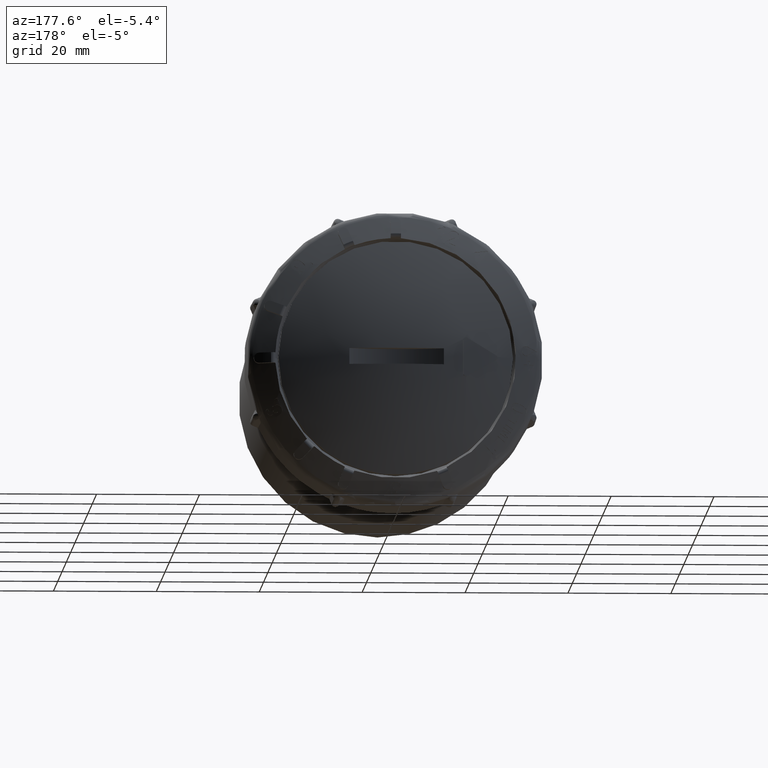
[diagram: clean part render]
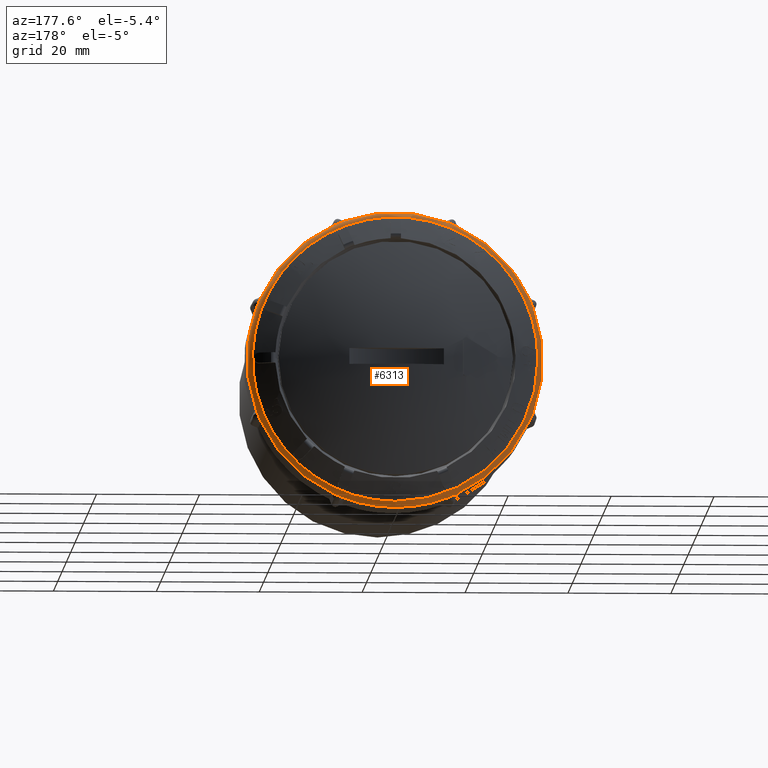
[diagram: same view with one face highlighted and labeled with its STEP entity id]
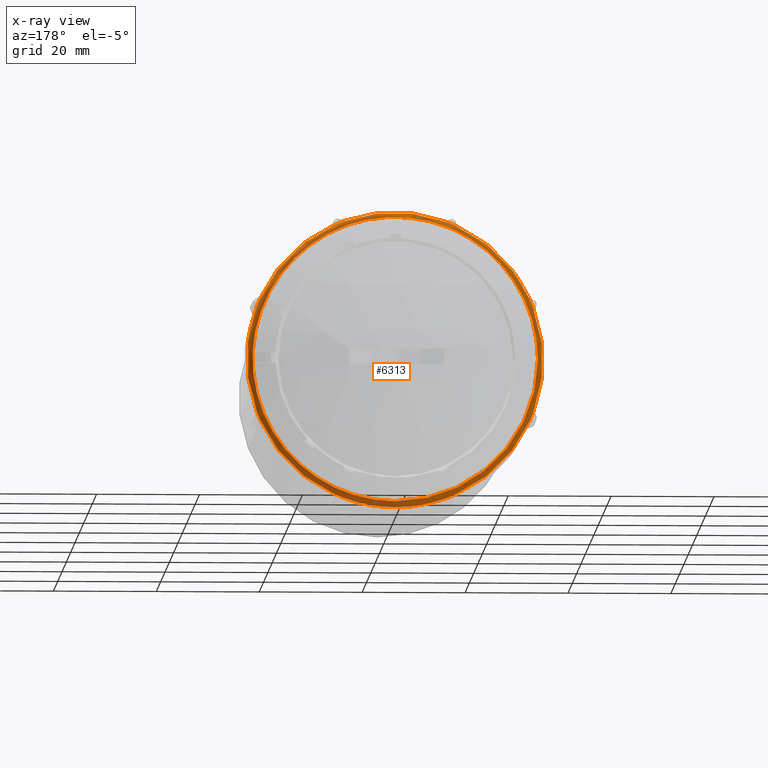
[diagram: x-ray of the same camera — body ghosted, the highlighted face saturated]
A machine part, auxiliary view. The second image highlights one B-rep face of the part: STEP entity #6313.
The next image is the same camera in x-ray: the body ghosted, the highlighted face saturated — about 0% of this face is hidden behind the body in this view.
In plain terms, the highlighted toroidal blend (fillet) surface has major radius 26.7601 mm and minor (blend) radius 2 mm.
Its self-contained STEP definition (entity closure, byte-faithful):
#189=TOROIDAL_SURFACE('',#6753,26.7601105933538,2.);
#1176=B_SPLINE_CURVE_WITH_KNOTS('',3,(#9256,#9257,#9258,#9259),
 .UNSPECIFIED.,.F.,.F.,(4,4),(0.,0.0148336896084148),.UNSPECIFIED.);
#1179=B_SPLINE_CURVE_WITH_KNOTS('',3,(#9289,#9290,#9291,#9292),
 .UNSPECIFIED.,.F.,.F.,(4,4),(3.32630750581756E-9,0.0148337531180695),
 .UNSPECIFIED.);
#1180=B_SPLINE_CURVE_WITH_KNOTS('',3,(#9302,#9303,#9304,#9305,#9306,#9307,
#9308,#9309,#9310,#9311,#9312,#9313),.UNSPECIFIED.,.F.,.F.,(4,2,2,2,2,4),
(0.,0.0320370428658661,0.0611745080788965,0.0891347805985909,0.108909685014162,
0.128834282042833),.UNSPECIFIED.);
#1182=B_SPLINE_CURVE_WITH_KNOTS('',3,(#9351,#9352,#9353,#9354),
 .UNSPECIFIED.,.F.,.F.,(4,4),(0.,0.0148336896083818),.UNSPECIFIED.);
#1185=B_SPLINE_CURVE_WITH_KNOTS('',3,(#9384,#9385,#9386,#9387),
 .UNSPECIFIED.,.F.,.F.,(4,4),(3.32630734475786E-9,0.0148337531179887),
 .UNSPECIFIED.);
#1186=B_SPLINE_CURVE_WITH_KNOTS('',3,(#9397,#9398,#9399,#9400,#9401,#9402,
#9403,#9404,#9405,#9406,#9407,#9408),.UNSPECIFIED.,.F.,.F.,(4,2,2,2,2,4),
(0.,0.0320370428658694,0.0611745080789084,0.0891347805986136,0.108909685014187,
0.128834282042854),.UNSPECIFIED.);
#1188=B_SPLINE_CURVE_WITH_KNOTS('',3,(#9446,#9447,#9448,#9449),
 .UNSPECIFIED.,.F.,.F.,(4,4),(0.,0.0148336896083872),.UNSPECIFIED.);
#1191=B_SPLINE_CURVE_WITH_KNOTS('',3,(#9479,#9480,#9481,#9482),
 .UNSPECIFIED.,.F.,.F.,(4,4),(3.32630671073734E-9,0.0148337531181456),
 .UNSPECIFIED.);
#1192=B_SPLINE_CURVE_WITH_KNOTS('',3,(#9492,#9493,#9494,#9495,#9496,#9497,
#9498,#9499,#9500,#9501,#9502,#9503),.UNSPECIFIED.,.F.,.F.,(4,2,2,2,2,4),
(0.,0.032037042865868,0.0611745080789088,0.0891347805986176,0.108909685014197,
0.128834282042868),.UNSPECIFIED.);
#1194=B_SPLINE_CURVE_WITH_KNOTS('',3,(#9541,#9542,#9543,#9544),
 .UNSPECIFIED.,.F.,.F.,(4,4),(0.,0.0148336896083754),.UNSPECIFIED.);
#1197=B_SPLINE_CURVE_WITH_KNOTS('',3,(#9574,#9575,#9576,#9577),
 .UNSPECIFIED.,.F.,.F.,(4,4),(3.32630661955745E-9,0.0148337531180443),
 .UNSPECIFIED.);
#1198=B_SPLINE_CURVE_WITH_KNOTS('',3,(#9587,#9588,#9589,#9590,#9591,#9592,
#9593,#9594,#9595,#9596,#9597,#9598),.UNSPECIFIED.,.F.,.F.,(4,2,2,2,2,4),
(0.,0.0320370428658693,0.061174508078909,0.0891347805986124,0.108909685014185,
0.128834282042856),.UNSPECIFIED.);
#1200=B_SPLINE_CURVE_WITH_KNOTS('',3,(#9636,#9637,#9638,#9639),
 .UNSPECIFIED.,.F.,.F.,(4,4),(0.,0.0148336896083804),.UNSPECIFIED.);
#1203=B_SPLINE_CURVE_WITH_KNOTS('',3,(#9669,#9670,#9671,#9672),
 .UNSPECIFIED.,.F.,.F.,(4,4),(3.32630674917658E-9,0.0148337531182227),
 .UNSPECIFIED.);
#1204=B_SPLINE_CURVE_WITH_KNOTS('',3,(#9682,#9683,#9684,#9685,#9686,#9687,
#9688,#9689,#9690,#9691,#9692,#9693),.UNSPECIFIED.,.F.,.F.,(4,2,2,2,2,4),
(0.,0.0320370428658679,0.0611745080789059,0.0891347805986127,0.108909685014194,
0.128834282042867),.UNSPECIFIED.);
#1206=B_SPLINE_CURVE_WITH_KNOTS('',3,(#9731,#9732,#9733,#9734),
 .UNSPECIFIED.,.F.,.F.,(4,4),(0.,0.0148336896084047),.UNSPECIFIED.);
#1209=B_SPLINE_CURVE_WITH_KNOTS('',3,(#9764,#9765,#9766,#9767),
 .UNSPECIFIED.,.F.,.F.,(4,4),(3.32630662356984E-9,0.0148337531180015),
 .UNSPECIFIED.);
#1210=B_SPLINE_CURVE_WITH_KNOTS('',3,(#9777,#9778,#9779,#9780,#9781,#9782,
#9783,#9784,#9785,#9786,#9787,#9788),.UNSPECIFIED.,.F.,.F.,(4,2,2,2,2,4),
(0.,0.0320370428658676,0.0611745080789006,0.0891347805986003,0.108909685014174,
0.128834282042842),.UNSPECIFIED.);
#1212=B_SPLINE_CURVE_WITH_KNOTS('',3,(#9826,#9827,#9828,#9829),
 .UNSPECIFIED.,.F.,.F.,(4,4),(0.,0.0148336896083799),.UNSPECIFIED.);
#1215=B_SPLINE_CURVE_WITH_KNOTS('',3,(#9859,#9860,#9861,#9862),
 .UNSPECIFIED.,.F.,.F.,(4,4),(3.32630684854577E-9,0.0148337531181848),
 .UNSPECIFIED.);
#1216=B_SPLINE_CURVE_WITH_KNOTS('',3,(#9872,#9873,#9874,#9875,#9876,#9877,
#9878,#9879,#9880,#9881,#9882,#9883),.UNSPECIFIED.,.F.,.F.,(4,2,2,2,2,4),
(0.,0.0320370428658662,0.0611745080789064,0.0891347805986128,0.10890968501419,
0.128834282042863),.UNSPECIFIED.);
#1222=B_SPLINE_CURVE_WITH_KNOTS('',3,(#10002,#10003,#10004,#10005),
 .UNSPECIFIED.,.F.,.F.,(4,4),(0.,0.0148337497913587),.UNSPECIFIED.);
#1223=B_SPLINE_CURVE_WITH_KNOTS('',3,(#10007,#10008,#10009,#10010,#10011,
#10012,#10013,#10014,#10015,#10016,#10017,#10018),.UNSPECIFIED.,.F.,.F.,
(4,2,2,2,2,4),(0.,0.0320370428658675,0.0611745080789003,0.0891347805985978,
0.108909685014166,0.128834282042829),.UNSPECIFIED.);
#1224=B_SPLINE_CURVE_WITH_KNOTS('',3,(#10019,#10020,#10021,#10022),
 .UNSPECIFIED.,.F.,.F.,(4,4),(0.,0.0148336896078785),.UNSPECIFIED.);
#1545=FACE_OUTER_BOUND('',#1903,.T.);
#1903=EDGE_LOOP('',(#4577,#4578,#4579,#4580,#4581,#4582,#4583,#4584,#4585,
#4586,#4587,#4588,#4589,#4590,#4591,#4592,#4593,#4594,#4595,#4596,#4597,
#4598,#4599,#4600,#4601,#4602,#4603,#4604,#4605,#4606,#4607,#4608,#4609,
#4610,#4611,#4612,#4613));
#2286=CIRCLE('',#6736,28.7600344394821);
#2287=CIRCLE('',#6738,28.7600344394821);
#2288=CIRCLE('',#6740,28.7600344394821);
#2289=CIRCLE('',#6742,28.7600344394821);
#2290=CIRCLE('',#6744,28.7600344394821);
#2291=CIRCLE('',#6746,28.7600344394821);
#2293=CIRCLE('',#6749,28.7600344394821);
#2294=CIRCLE('',#6750,28.7600344394821);
#2295=CIRCLE('',#6752,28.7600344394821);
#2296=CIRCLE('',#6754,27.7332055240212);
#2297=CIRCLE('',#6755,2.);
#2298=CIRCLE('',#6756,27.7332055240212);
#2657=VERTEX_POINT('',#9243);
#2659=VERTEX_POINT('',#9255);
#2661=VERTEX_POINT('',#9272);
#2664=VERTEX_POINT('',#9287);
#2667=VERTEX_POINT('',#9338);
#2669=VERTEX_POINT('',#9350);
#2671=VERTEX_POINT('',#9367);
#2674=VERTEX_POINT('',#9382);
#2677=VERTEX_POINT('',#9433);
#2679=VERTEX_POINT('',#9445);
#2681=VERTEX_POINT('',#9462);
#2684=VERTEX_POINT('',#9477);
#2687=VERTEX_POINT('',#9528);
#2689=VERTEX_POINT('',#9540);
#2691=VERTEX_POINT('',#9557);
#2694=VERTEX_POINT('',#9572);
#2697=VERTEX_POINT('',#9623);
#2699=VERTEX_POINT('',#9635);
#2701=VERTEX_POINT('',#9652);
#2704=VERTEX_POINT('',#9667);
#2707=VERTEX_POINT('',#9718);
#2709=VERTEX_POINT('',#9730);
#2711=VERTEX_POINT('',#9747);
#2714=VERTEX_POINT('',#9762);
#2717=VERTEX_POINT('',#9813);
#2719=VERTEX_POINT('',#9825);
#2721=VERTEX_POINT('',#9842);
#2724=VERTEX_POINT('',#9857);
#2732=VERTEX_POINT('',#9946);
#2737=VERTEX_POINT('',#9980);
#2738=VERTEX_POINT('',#9991);
#2739=VERTEX_POINT('',#9997);
#2740=VERTEX_POINT('',#9998);
#2741=VERTEX_POINT('',#10001);
#2742=VERTEX_POINT('',#10006);
#3300=EDGE_CURVE('',#2659,#2657,#1176,.T.);
#3307=EDGE_CURVE('',#2661,#2664,#1179,.T.);
#3308=EDGE_CURVE('',#2664,#2659,#1180,.T.);
#3317=EDGE_CURVE('',#2669,#2667,#1182,.T.);
#3324=EDGE_CURVE('',#2671,#2674,#1185,.T.);
#3325=EDGE_CURVE('',#2674,#2669,#1186,.T.);
#3334=EDGE_CURVE('',#2679,#2677,#1188,.T.);
#3341=EDGE_CURVE('',#2681,#2684,#1191,.T.);
#3342=EDGE_CURVE('',#2684,#2679,#1192,.T.);
#3351=EDGE_CURVE('',#2689,#2687,#1194,.T.);
#3358=EDGE_CURVE('',#2691,#2694,#1197,.T.);
#3359=EDGE_CURVE('',#2694,#2689,#1198,.T.);
#3368=EDGE_CURVE('',#2699,#2697,#1200,.T.);
#3375=EDGE_CURVE('',#2701,#2704,#1203,.T.);
#3376=EDGE_CURVE('',#2704,#2699,#1204,.T.);
#3385=EDGE_CURVE('',#2709,#2707,#1206,.T.);
#3392=EDGE_CURVE('',#2711,#2714,#1209,.T.);
#3393=EDGE_CURVE('',#2714,#2709,#1210,.T.);
#3402=EDGE_CURVE('',#2719,#2717,#1212,.T.);
#3409=EDGE_CURVE('',#2721,#2724,#1215,.T.);
#3410=EDGE_CURVE('',#2724,#2719,#1216,.T.);
#3429=EDGE_CURVE('',#2732,#2721,#2286,.T.);
#3433=EDGE_CURVE('',#2717,#2711,#2287,.T.);
#3434=EDGE_CURVE('',#2707,#2701,#2288,.T.);
#3435=EDGE_CURVE('',#2697,#2691,#2289,.T.);
#3436=EDGE_CURVE('',#2687,#2681,#2290,.T.);
#3437=EDGE_CURVE('',#2677,#2671,#2291,.T.);
#3441=EDGE_CURVE('',#2738,#2737,#2293,.T.);
#3442=EDGE_CURVE('',#2657,#2738,#2294,.T.);
#3443=EDGE_CURVE('',#2667,#2661,#2295,.T.);
#3444=EDGE_CURVE('',#2739,#2740,#2296,.T.);
#3445=EDGE_CURVE('',#2740,#2738,#2297,.T.);
#3446=EDGE_CURVE('',#2737,#2741,#1222,.T.);
#3447=EDGE_CURVE('',#2741,#2742,#1223,.T.);
#3448=EDGE_CURVE('',#2742,#2732,#1224,.T.);
#3449=EDGE_CURVE('',#2740,#2739,#2298,.T.);
#4577=ORIENTED_EDGE('',*,*,#3444,.T.);
#4578=ORIENTED_EDGE('',*,*,#3445,.T.);
#4579=ORIENTED_EDGE('',*,*,#3441,.T.);
#4580=ORIENTED_EDGE('',*,*,#3446,.T.);
#4581=ORIENTED_EDGE('',*,*,#3447,.T.);
#4582=ORIENTED_EDGE('',*,*,#3448,.T.);
#4583=ORIENTED_EDGE('',*,*,#3429,.T.);
#4584=ORIENTED_EDGE('',*,*,#3409,.T.);
#4585=ORIENTED_EDGE('',*,*,#3410,.T.);
#4586=ORIENTED_EDGE('',*,*,#3402,.T.);
#4587=ORIENTED_EDGE('',*,*,#3433,.T.);
#4588=ORIENTED_EDGE('',*,*,#3392,.T.);
#4589=ORIENTED_EDGE('',*,*,#3393,.T.);
#4590=ORIENTED_EDGE('',*,*,#3385,.T.);
#4591=ORIENTED_EDGE('',*,*,#3434,.T.);
#4592=ORIENTED_EDGE('',*,*,#3375,.T.);
#4593=ORIENTED_EDGE('',*,*,#3376,.T.);
#4594=ORIENTED_EDGE('',*,*,#3368,.T.);
#4595=ORIENTED_EDGE('',*,*,#3435,.T.);
#4596=ORIENTED_EDGE('',*,*,#3358,.T.);
#4597=ORIENTED_EDGE('',*,*,#3359,.T.);
#4598=ORIENTED_EDGE('',*,*,#3351,.T.);
#4599=ORIENTED_EDGE('',*,*,#3436,.T.);
#4600=ORIENTED_EDGE('',*,*,#3341,.T.);
#4601=ORIENTED_EDGE('',*,*,#3342,.T.);
#4602=ORIENTED_EDGE('',*,*,#3334,.T.);
#4603=ORIENTED_EDGE('',*,*,#3437,.T.);
#4604=ORIENTED_EDGE('',*,*,#3324,.T.);
#4605=ORIENTED_EDGE('',*,*,#3325,.T.);
#4606=ORIENTED_EDGE('',*,*,#3317,.T.);
#4607=ORIENTED_EDGE('',*,*,#3443,.T.);
#4608=ORIENTED_EDGE('',*,*,#3307,.T.);
#4609=ORIENTED_EDGE('',*,*,#3308,.T.);
#4610=ORIENTED_EDGE('',*,*,#3300,.T.);
#4611=ORIENTED_EDGE('',*,*,#3442,.T.);
#4612=ORIENTED_EDGE('',*,*,#3445,.F.);
#4613=ORIENTED_EDGE('',*,*,#3449,.T.);
#6313=ADVANCED_FACE('',(#1545),#189,.T.);
#6736=AXIS2_PLACEMENT_3D('',#9947,#7584,#7585);
#6738=AXIS2_PLACEMENT_3D('',#9966,#7589,#7590);
#6740=AXIS2_PLACEMENT_3D('',#9968,#7593,#7594);
#6742=AXIS2_PLACEMENT_3D('',#9970,#7597,#7598);
#6744=AXIS2_PLACEMENT_3D('',#9972,#7601,#7602);
#6746=AXIS2_PLACEMENT_3D('',#9974,#7605,#7606);
#6749=AXIS2_PLACEMENT_3D('',#9992,#7612,#7613);
#6750=AXIS2_PLACEMENT_3D('',#9993,#7614,#7615);
#6752=AXIS2_PLACEMENT_3D('',#9995,#7618,#7619);
#6753=AXIS2_PLACEMENT_3D('',#9996,#7620,#7621);
#6754=AXIS2_PLACEMENT_3D('',#9999,#7622,#7623);
#6755=AXIS2_PLACEMENT_3D('',#10000,#7624,#7625);
#6756=AXIS2_PLACEMENT_3D('',#10023,#7626,#7627);
#7584=DIRECTION('center_axis',(-3.6814030682041E-17,1.,2.31725584917116E-17));
#7585=DIRECTION('ref_axis',(1.,3.6814030682041E-17,1.11022302462516E-16));
#7589=DIRECTION('center_axis',(-3.6814030682041E-17,1.,2.31725584917116E-17));
#7590=DIRECTION('ref_axis',(1.,3.6814030682041E-17,1.11022302462516E-16));
#7593=DIRECTION('center_axis',(-3.6814030682041E-17,1.,2.31725584917116E-17));
#7594=DIRECTION('ref_axis',(1.,3.6814030682041E-17,1.11022302462516E-16));
#7597=DIRECTION('center_axis',(-3.6814030682041E-17,1.,2.31725584917116E-17));
#7598=DIRECTION('ref_axis',(1.,3.6814030682041E-17,1.11022302462516E-16));
#7601=DIRECTION('center_axis',(-3.6814030682041E-17,1.,2.31725584917116E-17));
#7602=DIRECTION('ref_axis',(1.,3.6814030682041E-17,1.11022302462516E-16));
#7605=DIRECTION('center_axis',(-3.6814030682041E-17,1.,2.31725584917116E-17));
#7606=DIRECTION('ref_axis',(1.,3.6814030682041E-17,1.11022302462516E-16));
#7612=DIRECTION('center_axis',(-3.6814030682041E-17,1.,2.31725584917116E-17));
#7613=DIRECTION('ref_axis',(1.,3.6814030682041E-17,1.11022302462516E-16));
#7614=DIRECTION('center_axis',(-3.6814030682041E-17,1.,2.31725584917116E-17));
#7615=DIRECTION('ref_axis',(1.,3.6814030682041E-17,1.11022302462516E-16));
#7618=DIRECTION('center_axis',(-3.6814030682041E-17,1.,2.31725584917116E-17));
#7619=DIRECTION('ref_axis',(1.,3.6814030682041E-17,1.11022302462516E-16));
#7620=DIRECTION('center_axis',(-3.6814030682041E-17,1.,2.31725584917116E-17));
#7621=DIRECTION('ref_axis',(-1.11022302462516E-16,0.,1.));
#7622=DIRECTION('center_axis',(3.6814030682041E-17,-1.,-2.31725584917116E-17));
#7623=DIRECTION('ref_axis',(1.,3.68140306820409E-17,2.33486982377251E-16));
#7624=DIRECTION('center_axis',(-1.,-3.6814030682041E-17,1.14423774522197E-17));
#7625=DIRECTION('ref_axis',(-1.14423774522197E-17,0.,-1.));
#7626=DIRECTION('center_axis',(3.6814030682041E-17,-1.,-2.31725584917116E-17));
#7627=DIRECTION('ref_axis',(1.,3.68140306820409E-17,2.33486982377251E-16));
#9243=CARTESIAN_POINT('',(10.3880729723535,11.7699235988919,-26.8184175685527));
#9255=CARTESIAN_POINT('',(10.4797180795152,11.8794896199269,-26.7784847694301));
#9256=CARTESIAN_POINT('Ctrl Pts',(10.4797180795152,11.8794896199269,-26.7784847694301));
#9257=CARTESIAN_POINT('Ctrl Pts',(10.4496592788956,11.8429122397389,-26.7927478471842));
#9258=CARTESIAN_POINT('Ctrl Pts',(10.4191090741495,11.8063764401465,-26.8060546315371));
#9259=CARTESIAN_POINT('Ctrl Pts',(10.3880729723535,11.7699235988919,-26.8184175685527));
#9272=CARTESIAN_POINT('',(11.6180080812043,11.7699235988919,-26.3089617656279));
#9287=CARTESIAN_POINT('',(11.5249684514163,11.8794896199269,-26.3455278893131));
#9289=CARTESIAN_POINT('Ctrl Pts',(11.6180080812043,11.7699235988919,-26.3089617656279));
#9290=CARTESIAN_POINT('Ctrl Pts',(11.5873203265636,11.8063764401464,-26.3221656870703));
#9291=CARTESIAN_POINT('Ctrl Pts',(11.5563087521693,11.8429122397389,-26.3343586265612));
#9292=CARTESIAN_POINT('Ctrl Pts',(11.5249684514163,11.8794896199269,-26.3455278893131));
#9302=CARTESIAN_POINT('Ctrl Pts',(11.5249684514163,11.8794896199269,-26.3455278893131));
#9303=CARTESIAN_POINT('Ctrl Pts',(11.457281290635,11.9584875540328,-26.3696506853788));
#9304=CARTESIAN_POINT('Ctrl Pts',(11.3751419774724,12.0233257565918,-26.3956483258124));
#9305=CARTESIAN_POINT('Ctrl Pts',(11.2004782377847,12.1095895910769,-26.4552156624567));
#9306=CARTESIAN_POINT('Ctrl Pts',(11.1116405980161,12.133406581356,-26.4873637052758));
#9307=CARTESIAN_POINT('Ctrl Pts',(10.9355612731622,12.1419939662177,-26.5587065604925));
#9308=CARTESIAN_POINT('Ctrl Pts',(10.851267460536,12.1281662220782,-26.5964125965186));
#9309=CARTESIAN_POINT('Ctrl Pts',(10.715819407641,12.0758101199405,-26.6610842031567));
#9310=CARTESIAN_POINT('Ctrl Pts',(10.6630635172332,12.0460403160566,-26.6874560868767));
#9311=CARTESIAN_POINT('Ctrl Pts',(10.5649698214638,11.9723359132823,-26.7367050184566));
#9312=CARTESIAN_POINT('Ctrl Pts',(10.5200704566484,11.9285928512423,-26.7593373290549));
#9313=CARTESIAN_POINT('Ctrl Pts',(10.4797180795152,11.8794896199269,-26.7784847694301));
#9338=CARTESIAN_POINT('',(26.3089617656279,11.7699235988919,-11.6180080812042));
#9350=CARTESIAN_POINT('',(26.3455278893131,11.8794896199269,-11.5249684514163));
#9351=CARTESIAN_POINT('Ctrl Pts',(26.3455278893131,11.8794896199269,-11.5249684514162));
#9352=CARTESIAN_POINT('Ctrl Pts',(26.3343586265612,11.842912239739,-11.5563087521691));
#9353=CARTESIAN_POINT('Ctrl Pts',(26.3221656870704,11.8063764401466,-11.5873203265634));
#9354=CARTESIAN_POINT('Ctrl Pts',(26.3089617656279,11.7699235988919,-11.6180080812042));
#9367=CARTESIAN_POINT('',(26.8184175685527,11.7699235988919,-10.3880729723535));
#9382=CARTESIAN_POINT('',(26.7784847694301,11.8794896199269,-10.4797180795152));
#9384=CARTESIAN_POINT('Ctrl Pts',(26.8184175685527,11.7699235988919,-10.3880729723535));
#9385=CARTESIAN_POINT('Ctrl Pts',(26.8060546315372,11.8063764401462,-10.4191090741492));
#9386=CARTESIAN_POINT('Ctrl Pts',(26.7927478471842,11.8429122397388,-10.4496592788954));
#9387=CARTESIAN_POINT('Ctrl Pts',(26.7784847694301,11.8794896199269,-10.4797180795151));
#9397=CARTESIAN_POINT('Ctrl Pts',(26.7784847694301,11.8794896199269,-10.4797180795151));
#9398=CARTESIAN_POINT('Ctrl Pts',(26.7476801117216,11.9584875540328,-10.5446375225821));
#9399=CARTESIAN_POINT('Ctrl Pts',(26.7079819542278,12.0233257565918,-10.6211018957668));
#9400=CARTESIAN_POINT('Ctrl Pts',(26.6265965071456,12.1095895910769,-10.7867282782058));
#9401=CARTESIAN_POINT('Ctrl Pts',(26.5865109087199,12.133406581356,-10.8722780747901));
#9402=CARTESIAN_POINT('Ctrl Pts',(26.5124510408019,12.1419939662176,-11.0472319761339));
#9403=CARTESIAN_POINT('Ctrl Pts',(26.4795085080476,12.1281662220782,-11.1334988964197));
#9404=CARTESIAN_POINT('Ctrl Pts',(26.429462002951,12.0758101199405,-11.2750048647243));
#9405=CARTESIAN_POINT('Ctrl Pts',(26.4108056929072,12.0460403160566,-11.3309566503903));
#9406=CARTESIAN_POINT('Ctrl Pts',(26.3762672289233,11.9723359132822,-11.4351436213468));
#9407=CARTESIAN_POINT('Ctrl Pts',(26.3605220438894,11.9285928512423,-11.4828957269767));
#9408=CARTESIAN_POINT('Ctrl Pts',(26.3455278893131,11.8794896199269,-11.5249684514162));
#9433=CARTESIAN_POINT('',(26.8184175685527,11.7699235988919,10.3880729723535));
#9445=CARTESIAN_POINT('',(26.7784847694301,11.8794896199269,10.4797180795152));
#9446=CARTESIAN_POINT('Ctrl Pts',(26.7784847694301,11.8794896199269,10.4797180795152));
#9447=CARTESIAN_POINT('Ctrl Pts',(26.7927478471842,11.842912239739,10.4496592788956));
#9448=CARTESIAN_POINT('Ctrl Pts',(26.806054631537,11.8063764401466,10.4191090741496));
#9449=CARTESIAN_POINT('Ctrl Pts',(26.8184175685527,11.7699235988919,10.3880729723535));
#9462=CARTESIAN_POINT('',(26.3089617656279,11.7699235988919,11.6180080812043));
#9477=CARTESIAN_POINT('',(26.3455278893131,11.8794896199269,11.5249684514163));
#9479=CARTESIAN_POINT('Ctrl Pts',(26.3089617656279,11.7699235988919,11.6180080812043));
#9480=CARTESIAN_POINT('Ctrl Pts',(26.3221656870703,11.8063764401466,11.5873203265634));
#9481=CARTESIAN_POINT('Ctrl Pts',(26.3343586265612,11.842912239739,11.5563087521692));
#9482=CARTESIAN_POINT('Ctrl Pts',(26.3455278893131,11.8794896199269,11.5249684514163));
#9492=CARTESIAN_POINT('Ctrl Pts',(26.3455278893131,11.8794896199269,11.5249684514163));
#9493=CARTESIAN_POINT('Ctrl Pts',(26.3696506853788,11.9584875540328,11.457281290635));
#9494=CARTESIAN_POINT('Ctrl Pts',(26.3956483258124,12.0233257565918,11.3751419774724));
#9495=CARTESIAN_POINT('Ctrl Pts',(26.4552156624567,12.1095895910769,11.2004782377846));
#9496=CARTESIAN_POINT('Ctrl Pts',(26.4873637052758,12.133406581356,11.1116405980161));
#9497=CARTESIAN_POINT('Ctrl Pts',(26.5587065604925,12.1419939662176,10.9355612731622));
#9498=CARTESIAN_POINT('Ctrl Pts',(26.5964125965186,12.1281662220782,10.851267460536));
#9499=CARTESIAN_POINT('Ctrl Pts',(26.6610842031567,12.0758101199405,10.715819407641));
#9500=CARTESIAN_POINT('Ctrl Pts',(26.6874560868767,12.0460403160566,10.6630635172332));
#9501=CARTESIAN_POINT('Ctrl Pts',(26.7367050184566,11.9723359132822,10.5649698214638));
#9502=CARTESIAN_POINT('Ctrl Pts',(26.7593373290549,11.9285928512423,10.5200704566484));
#9503=CARTESIAN_POINT('Ctrl Pts',(26.7784847694301,11.8794896199269,10.4797180795152));
#9528=CARTESIAN_POINT('',(11.6180080812042,11.7699235988919,26.3089617656279));
#9540=CARTESIAN_POINT('',(11.5249684514163,11.8794896199269,26.3455278893131));
#9541=CARTESIAN_POINT('Ctrl Pts',(11.5249684514162,11.8794896199269,26.3455278893131));
#9542=CARTESIAN_POINT('Ctrl Pts',(11.5563087521691,11.842912239739,26.3343586265612));
#9543=CARTESIAN_POINT('Ctrl Pts',(11.5873203265633,11.8063764401466,26.3221656870704));
#9544=CARTESIAN_POINT('Ctrl Pts',(11.6180080812042,11.7699235988919,26.3089617656279));
#9557=CARTESIAN_POINT('',(10.3880729723535,11.7699235988919,26.8184175685527));
#9572=CARTESIAN_POINT('',(10.4797180795152,11.8794896199269,26.7784847694301));
#9574=CARTESIAN_POINT('Ctrl Pts',(10.3880729723535,11.7699235988919,26.8184175685527));
#9575=CARTESIAN_POINT('Ctrl Pts',(10.4191090741494,11.8063764401463,26.8060546315371));
#9576=CARTESIAN_POINT('Ctrl Pts',(10.4496592788955,11.8429122397388,26.7927478471842));
#9577=CARTESIAN_POINT('Ctrl Pts',(10.4797180795151,11.8794896199269,26.7784847694301));
#9587=CARTESIAN_POINT('Ctrl Pts',(10.4797180795151,11.8794896199269,26.7784847694301));
#9588=CARTESIAN_POINT('Ctrl Pts',(10.5446375225821,11.9584875540328,26.7476801117216));
#9589=CARTESIAN_POINT('Ctrl Pts',(10.6211018957668,12.0233257565918,26.7079819542278));
#9590=CARTESIAN_POINT('Ctrl Pts',(10.7867282782058,12.1095895910769,26.6265965071456));
#9591=CARTESIAN_POINT('Ctrl Pts',(10.8722780747901,12.133406581356,26.5865109087199));
#9592=CARTESIAN_POINT('Ctrl Pts',(11.0472319761339,12.1419939662176,26.5124510408019));
#9593=CARTESIAN_POINT('Ctrl Pts',(11.1334988964197,12.1281662220782,26.4795085080476));
#9594=CARTESIAN_POINT('Ctrl Pts',(11.2750048647243,12.0758101199405,26.429462002951));
#9595=CARTESIAN_POINT('Ctrl Pts',(11.3309566503903,12.0460403160566,26.4108056929072));
#9596=CARTESIAN_POINT('Ctrl Pts',(11.4351436213468,11.9723359132822,26.3762672289233));
#9597=CARTESIAN_POINT('Ctrl Pts',(11.4828957269767,11.9285928512423,26.3605220438894));
#9598=CARTESIAN_POINT('Ctrl Pts',(11.5249684514162,11.8794896199269,26.3455278893131));
#9623=CARTESIAN_POINT('',(-10.3880729723535,11.7699235988919,26.8184175685527));
#9635=CARTESIAN_POINT('',(-10.4797180795152,11.8794896199269,26.7784847694301));
#9636=CARTESIAN_POINT('Ctrl Pts',(-10.4797180795152,11.8794896199269,26.7784847694301));
#9637=CARTESIAN_POINT('Ctrl Pts',(-10.4496592788956,11.842912239739,26.7927478471841));
#9638=CARTESIAN_POINT('Ctrl Pts',(-10.4191090741496,11.8063764401466,26.806054631537));
#9639=CARTESIAN_POINT('Ctrl Pts',(-10.3880729723535,11.7699235988919,26.8184175685527));
#9652=CARTESIAN_POINT('',(-11.6180080812043,11.7699235988919,26.3089617656279));
#9667=CARTESIAN_POINT('',(-11.5249684514163,11.8794896199269,26.3455278893131));
#9669=CARTESIAN_POINT('Ctrl Pts',(-11.6180080812043,11.7699235988919,26.3089617656279));
#9670=CARTESIAN_POINT('Ctrl Pts',(-11.5873203265633,11.8063764401468,26.3221656870704));
#9671=CARTESIAN_POINT('Ctrl Pts',(-11.5563087521691,11.842912239739,26.3343586265612));
#9672=CARTESIAN_POINT('Ctrl Pts',(-11.5249684514163,11.8794896199269,26.3455278893131));
#9682=CARTESIAN_POINT('Ctrl Pts',(-11.5249684514163,11.8794896199269,26.3455278893131));
#9683=CARTESIAN_POINT('Ctrl Pts',(-11.457281290635,11.9584875540328,26.3696506853788));
#9684=CARTESIAN_POINT('Ctrl Pts',(-11.3751419774724,12.0233257565918,26.3956483258124));
#9685=CARTESIAN_POINT('Ctrl Pts',(-11.2004782377846,12.1095895910769,26.4552156624567));
#9686=CARTESIAN_POINT('Ctrl Pts',(-11.1116405980161,12.133406581356,26.4873637052758));
#9687=CARTESIAN_POINT('Ctrl Pts',(-10.9355612731622,12.1419939662176,26.5587065604925));
#9688=CARTESIAN_POINT('Ctrl Pts',(-10.851267460536,12.1281662220781,26.5964125965187));
#9689=CARTESIAN_POINT('Ctrl Pts',(-10.715819407641,12.0758101199405,26.6610842031567));
#9690=CARTESIAN_POINT('Ctrl Pts',(-10.6630635172332,12.0460403160566,26.6874560868767));
#9691=CARTESIAN_POINT('Ctrl Pts',(-10.5649698214638,11.9723359132823,26.7367050184566));
#9692=CARTESIAN_POINT('Ctrl Pts',(-10.5200704566484,11.9285928512423,26.7593373290549));
#9693=CARTESIAN_POINT('Ctrl Pts',(-10.4797180795152,11.8794896199269,26.7784847694301));
#9718=CARTESIAN_POINT('',(-26.3089617656279,11.7699235988919,11.6180080812042));
#9730=CARTESIAN_POINT('',(-26.3455278893131,11.8794896199269,11.5249684514163));
#9731=CARTESIAN_POINT('Ctrl Pts',(-26.3455278893131,11.8794896199269,11.5249684514163));
#9732=CARTESIAN_POINT('Ctrl Pts',(-26.3343586265612,11.8429122397389,11.5563087521692));
#9733=CARTESIAN_POINT('Ctrl Pts',(-26.3221656870703,11.8063764401465,11.5873203265635));
#9734=CARTESIAN_POINT('Ctrl Pts',(-26.3089617656279,11.7699235988919,11.6180080812042));
#9747=CARTESIAN_POINT('',(-26.8184175685527,11.7699235988919,10.3880729723535));
#9762=CARTESIAN_POINT('',(-26.7784847694301,11.8794896199269,10.4797180795152));
#9764=CARTESIAN_POINT('Ctrl Pts',(-26.8184175685527,11.7699235988919,10.3880729723535));
#9765=CARTESIAN_POINT('Ctrl Pts',(-26.8060546315371,11.8063764401462,10.4191090741493));
#9766=CARTESIAN_POINT('Ctrl Pts',(-26.7927478471842,11.8429122397388,10.4496592788954));
#9767=CARTESIAN_POINT('Ctrl Pts',(-26.7784847694301,11.8794896199269,10.4797180795151));
#9777=CARTESIAN_POINT('Ctrl Pts',(-26.7784847694301,11.8794896199269,10.4797180795151));
#9778=CARTESIAN_POINT('Ctrl Pts',(-26.7476801117216,11.9584875540328,10.5446375225821));
#9779=CARTESIAN_POINT('Ctrl Pts',(-26.7079819542278,12.0233257565918,10.6211018957668));
#9780=CARTESIAN_POINT('Ctrl Pts',(-26.6265965071456,12.1095895910769,10.7867282782058));
#9781=CARTESIAN_POINT('Ctrl Pts',(-26.5865109087199,12.133406581356,10.87227807479));
#9782=CARTESIAN_POINT('Ctrl Pts',(-26.5124510408019,12.1419939662176,11.0472319761339));
#9783=CARTESIAN_POINT('Ctrl Pts',(-26.4795085080476,12.1281662220781,11.1334988964197));
#9784=CARTESIAN_POINT('Ctrl Pts',(-26.429462002951,12.0758101199405,11.2750048647243));
#9785=CARTESIAN_POINT('Ctrl Pts',(-26.4108056929072,12.0460403160566,11.3309566503903));
#9786=CARTESIAN_POINT('Ctrl Pts',(-26.3762672289233,11.9723359132822,11.4351436213468));
#9787=CARTESIAN_POINT('Ctrl Pts',(-26.3605220438894,11.9285928512423,11.4828957269767));
#9788=CARTESIAN_POINT('Ctrl Pts',(-26.3455278893131,11.8794896199269,11.5249684514163));
#9813=CARTESIAN_POINT('',(-26.8184175685527,11.7699235988919,-10.3880729723535));
#9825=CARTESIAN_POINT('',(-26.7784847694301,11.8794896199269,-10.4797180795152));
#9826=CARTESIAN_POINT('Ctrl Pts',(-26.7784847694301,11.8794896199269,-10.4797180795152));
#9827=CARTESIAN_POINT('Ctrl Pts',(-26.7927478471841,11.842912239739,-10.4496592788956));
#9828=CARTESIAN_POINT('Ctrl Pts',(-26.806054631537,11.8063764401466,-10.4191090741496));
#9829=CARTESIAN_POINT('Ctrl Pts',(-26.8184175685527,11.7699235988919,-10.3880729723535));
#9842=CARTESIAN_POINT('',(-26.3089617656279,11.7699235988919,-11.6180080812043));
#9857=CARTESIAN_POINT('',(-26.3455278893131,11.8794896199269,-11.5249684514163));
#9859=CARTESIAN_POINT('Ctrl Pts',(-26.3089617656279,11.7699235988919,-11.6180080812043));
#9860=CARTESIAN_POINT('Ctrl Pts',(-26.3221656870704,11.8063764401467,-11.5873203265634));
#9861=CARTESIAN_POINT('Ctrl Pts',(-26.3343586265612,11.842912239739,-11.5563087521692));
#9862=CARTESIAN_POINT('Ctrl Pts',(-26.3455278893131,11.8794896199269,-11.5249684514163));
#9872=CARTESIAN_POINT('Ctrl Pts',(-26.3455278893131,11.8794896199269,-11.5249684514163));
#9873=CARTESIAN_POINT('Ctrl Pts',(-26.3696506853788,11.9584875540328,-11.457281290635));
#9874=CARTESIAN_POINT('Ctrl Pts',(-26.3956483258124,12.0233257565918,-11.3751419774724));
#9875=CARTESIAN_POINT('Ctrl Pts',(-26.4552156624567,12.1095895910769,-11.2004782377846));
#9876=CARTESIAN_POINT('Ctrl Pts',(-26.4873637052758,12.133406581356,-11.1116405980161));
#9877=CARTESIAN_POINT('Ctrl Pts',(-26.5587065604925,12.1419939662176,-10.9355612731622));
#9878=CARTESIAN_POINT('Ctrl Pts',(-26.5964125965186,12.1281662220782,-10.851267460536));
#9879=CARTESIAN_POINT('Ctrl Pts',(-26.6610842031567,12.0758101199405,-10.715819407641));
#9880=CARTESIAN_POINT('Ctrl Pts',(-26.6874560868768,12.0460403160566,-10.6630635172332));
#9881=CARTESIAN_POINT('Ctrl Pts',(-26.7367050184566,11.9723359132822,-10.5649698214638));
#9882=CARTESIAN_POINT('Ctrl Pts',(-26.7593373290549,11.9285928512423,-10.5200704566484));
#9883=CARTESIAN_POINT('Ctrl Pts',(-26.7784847694301,11.8794896199269,-10.4797180795152));
#9946=CARTESIAN_POINT('',(-11.6180080812042,11.7699235988919,-26.3089617656279));
#9947=CARTESIAN_POINT('Origin',(-4.32867083683171E-16,11.7699235988919,
-3.54478165099257E-15));
#9966=CARTESIAN_POINT('Origin',(-4.32867083683171E-16,11.7699235988919,
-3.54478165099257E-15));
#9968=CARTESIAN_POINT('Origin',(-4.32867083683171E-16,11.7699235988919,
-3.54478165099257E-15));
#9970=CARTESIAN_POINT('Origin',(-4.32867083683171E-16,11.7699235988919,
-3.54478165099257E-15));
#9972=CARTESIAN_POINT('Origin',(-4.32867083683171E-16,11.7699235988919,
-3.54478165099257E-15));
#9974=CARTESIAN_POINT('Origin',(-4.32867083683171E-16,11.7699235988919,
-3.54478165099257E-15));
#9980=CARTESIAN_POINT('',(-10.3880729723535,11.7699235988919,-26.8184175685528));
#9991=CARTESIAN_POINT('',(-7.61950253278564E-16,11.7699235988919,-28.7600344394822));
#9992=CARTESIAN_POINT('Origin',(-4.32867083683171E-16,11.7699235988919,
-3.54478165099257E-15));
#9993=CARTESIAN_POINT('Origin',(-4.32867083683171E-16,11.7699235988919,
-3.54478165099257E-15));
#9995=CARTESIAN_POINT('Origin',(-4.32867083683171E-16,11.7699235988919,
-3.54478165099257E-15));
#9996=CARTESIAN_POINT('Origin',(-4.32224565792001E-16,11.7524705278952,
-2.30976713331569E-17));
#9997=CARTESIAN_POINT('',(-27.7332055240212,13.499778816638,-9.85428867476986E-15));
#9998=CARTESIAN_POINT('',(-8.13883832310598E-16,13.499778816638,-27.7332055240212));
#9999=CARTESIAN_POINT('Origin',(-4.96550026744763E-16,13.499778816638,1.73919321907882E-17));
#10000=CARTESIAN_POINT('Origin',(-7.38423851864298E-16,11.7524705278952,
-26.7601105933538));
#10001=CARTESIAN_POINT('',(-10.4797180795152,11.8794896199269,-26.7784847694301));
#10002=CARTESIAN_POINT('Ctrl Pts',(-10.3880729723535,11.7699235988919,-26.8184175685527));
#10003=CARTESIAN_POINT('Ctrl Pts',(-10.4191090671891,11.8063764319712,-26.8060546343097));
#10004=CARTESIAN_POINT('Ctrl Pts',(-10.4496592856371,11.8429122479424,-26.7927478439853));
#10005=CARTESIAN_POINT('Ctrl Pts',(-10.4797180795152,11.8794896199269,-26.7784847694301));
#10006=CARTESIAN_POINT('',(-11.5249684514163,11.8794896199269,-26.3455278893131));
#10007=CARTESIAN_POINT('Ctrl Pts',(-10.4797180795151,11.8794896199269,-26.7784847694301));
#10008=CARTESIAN_POINT('Ctrl Pts',(-10.5446375225821,11.9584875540328,-26.7476801117216));
#10009=CARTESIAN_POINT('Ctrl Pts',(-10.6211018957668,12.0233257565918,-26.7079819542278));
#10010=CARTESIAN_POINT('Ctrl Pts',(-10.7867282782058,12.1095895910769,-26.6265965071456));
#10011=CARTESIAN_POINT('Ctrl Pts',(-10.87227807479,12.133406581356,-26.5865109087199));
#10012=CARTESIAN_POINT('Ctrl Pts',(-11.0472319761339,12.1419939662176,-26.5124510408019));
#10013=CARTESIAN_POINT('Ctrl Pts',(-11.1334988964197,12.1281662220782,-26.4795085080476));
#10014=CARTESIAN_POINT('Ctrl Pts',(-11.2750048647243,12.0758101199405,-26.429462002951));
#10015=CARTESIAN_POINT('Ctrl Pts',(-11.3309566503903,12.0460403160566,-26.4108056929072));
#10016=CARTESIAN_POINT('Ctrl Pts',(-11.4351436213468,11.9723359132822,-26.3762672289233));
#10017=CARTESIAN_POINT('Ctrl Pts',(-11.4828957269768,11.9285928512423,-26.3605220438894));
#10018=CARTESIAN_POINT('Ctrl Pts',(-11.5249684514163,11.8794896199269,-26.3455278893131));
#10019=CARTESIAN_POINT('Ctrl Pts',(-11.5249684514163,11.8794896199269,-26.3455278893131));
#10020=CARTESIAN_POINT('Ctrl Pts',(-11.5563087451404,11.8429122479423,-26.3343586290662));
#10021=CARTESIAN_POINT('Ctrl Pts',(-11.5873203334459,11.8063764319711,-26.322165684109));
#10022=CARTESIAN_POINT('Ctrl Pts',(-11.6180080812042,11.7699235988919,-26.3089617656279));
#10023=CARTESIAN_POINT('Origin',(-4.96550026744763E-16,13.499778816638,
1.73919321907882E-17));